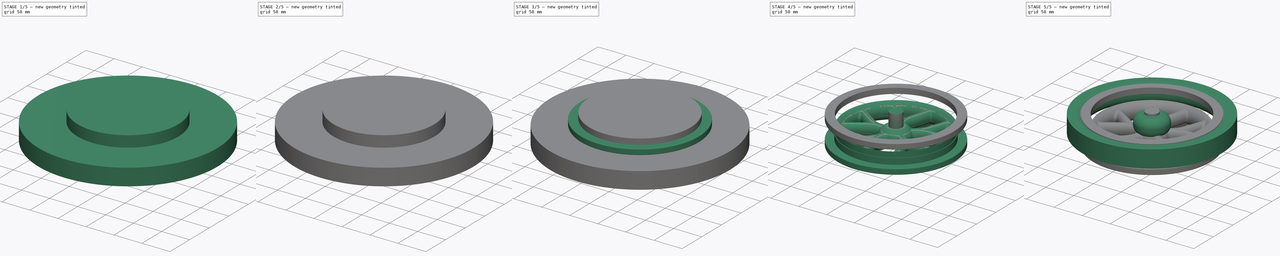
[diagram: build sequence overview — one tinted view per stage of 5, left to right]
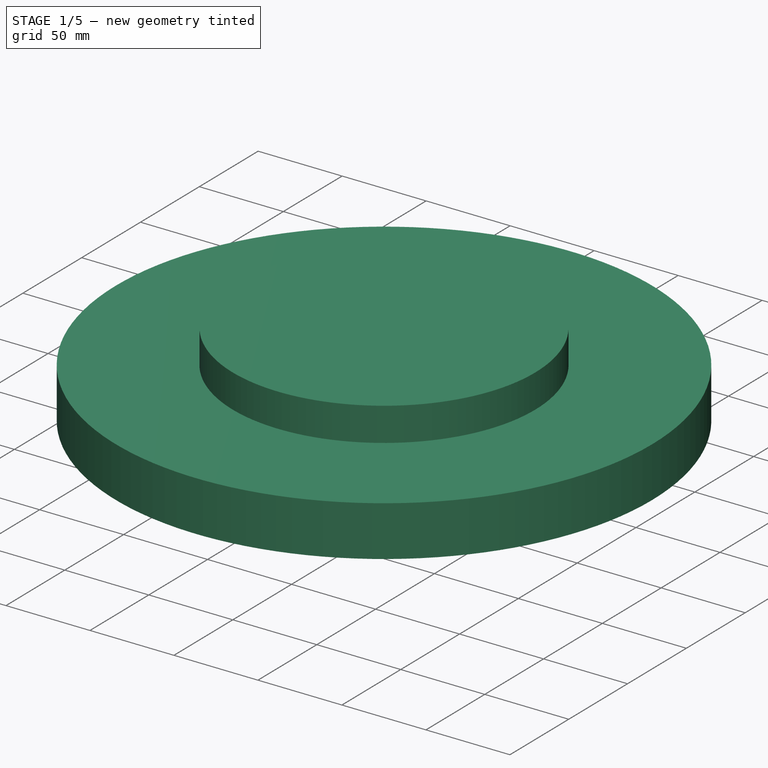
[diagram: stage 1 of 5 — iso view after this stage's code; geometry added in this stage tinted green]
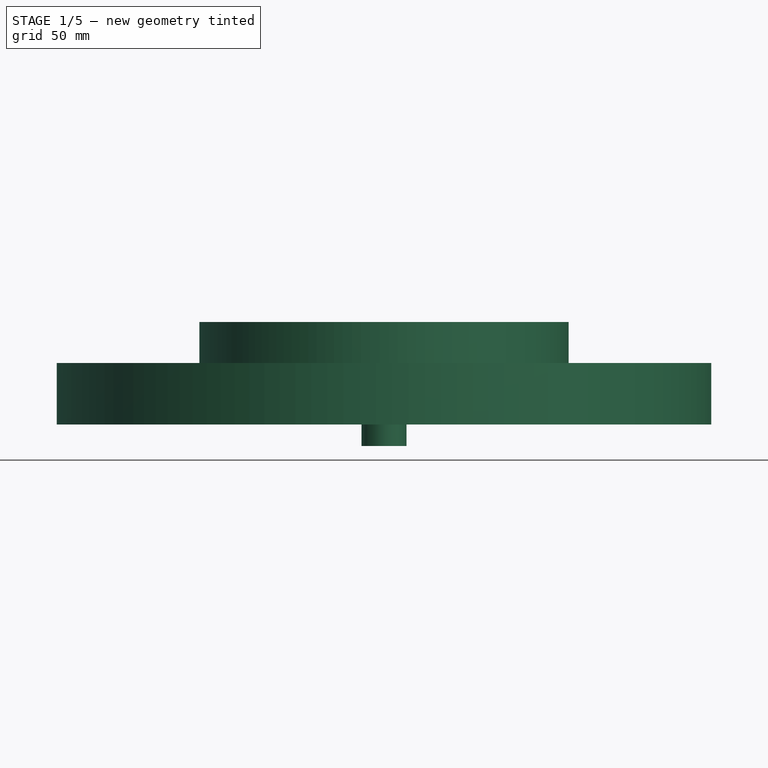
[diagram: stage 1 of 5 — front view after this stage's code; geometry added in this stage tinted green]
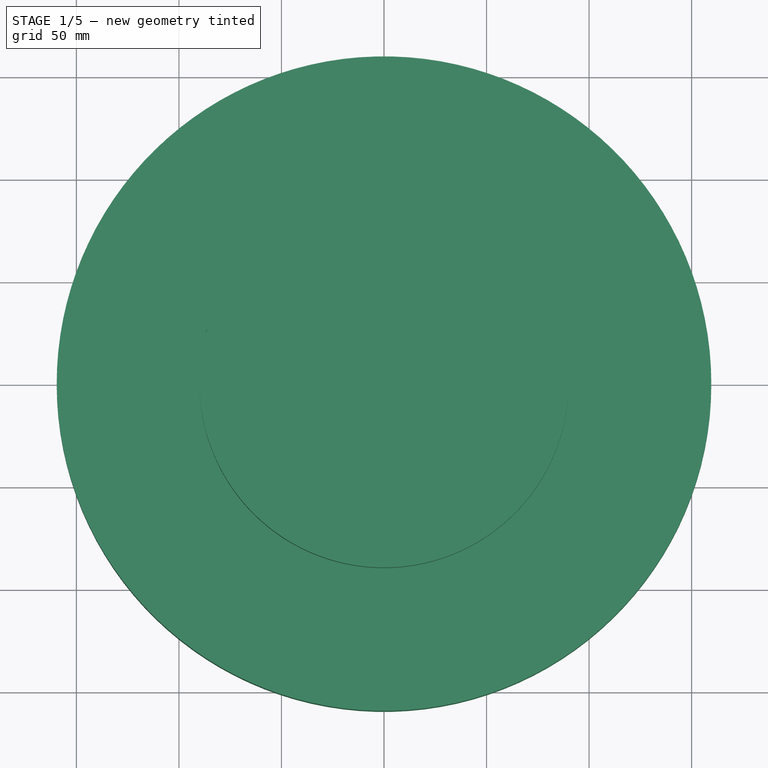
[diagram: stage 1 of 5 — top view after this stage's code; geometry added in this stage tinted green]
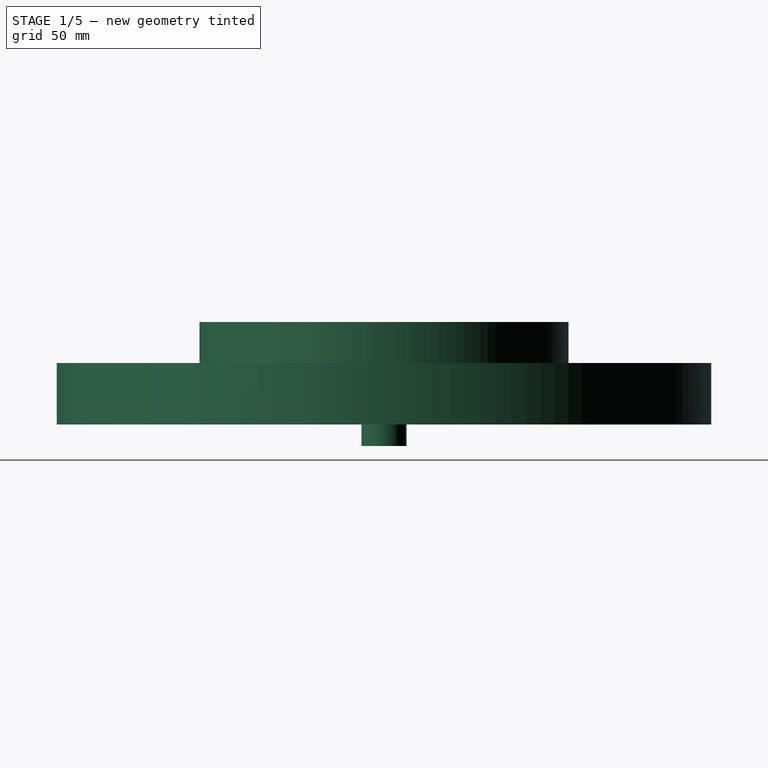
[diagram: stage 1 of 5 — right view after this stage's code; geometry added in this stage tinted green]
FCSTD DOCUMENT  (FreeCAD 0.21R30193 (Git))
Label: Vorderrad_Siggi
License: All rights reserved
LicenseURL: http://en.wikipedia.org/wiki/All_rights_reserved
objects: Sketcher::SketchObject×9, PartDesign::Body×6, Part::FeaturePython×4, Part::Fillet×3, PartDesign::Revolution×3, Part::Cylinder×2, PartDesign::AdditivePipe×2, PartDesign::PolarPattern×2, Part::MultiFuse×2, PartDesign::Pad×2, Part::Cut×1, App::DocumentObjectGroup×1
note: 43 computed .brp shape members not serialized (recipe doc carries the construction recipe); baked Part::Feature solids carry a one-line shape summary decoded from their .brp

FEATURE [PartDesign::Body] Body002  label="Felge16"
  Group = -> [Sketch002,Revolution]
  Origin = -> Origin002
  Placement = pos=(0,0,15.5) rot=(0,0,1;0rad)
  Tip = -> Revolution
FEATURE [Sketcher::SketchObject] Sketch004  label="leg-profile-copy"
  AttachmentOffset = pos=(0.5,0,-10.1) rot=(0,0,1;0rad)
  FullyConstrained = true
  MapMode = 5
  Placement = pos=(-10.1,0.5,-2.4e-15) rot=(0.57735,0.57735,0.57735;2.0944rad)
  Support = -> [YZ_Plane003]
  expr: Constraints[15] = Sketch.Constraints[15]
  expr: Constraints[17] = Sketch.Constraints[17]
  expr: Constraints[5] = Sketch.Constraints[5]
  expr: Constraints[7] = Sketch.Constraints[7]
  expr: Constraints[8] = Sketch.Constraints[8]
  sketch-geometry (8):
    g0: ArcOfEllipse CenterX=0 CenterY=15.5 CenterZ=0 NormalX=0 NormalY=0 NormalZ=1 MajorRadius=10.5 MinorRadius=7.5 AngleXU=1.5708 StartAngle=3.48143 EndAngle=9.08494
    g1: LineSegment StartX=0 StartY=26 StartZ=0 EndX=0 EndY=5 EndZ=0
    g2: LineSegment StartX=-7.5 StartY=15.5 StartZ=0 EndX=7.5 EndY=15.5 EndZ=0
    g3: GeomPoint X=0 Y=22.8485 Z=0
    g4: GeomPoint X=0 Y=8.15153 Z=0
    g5: LineSegment StartX=-2.5 StartY=5.60051 StartZ=0 EndX=-0.75 EndY=0 EndZ=0
    g6: LineSegment StartX=-0.75 StartY=0 StartZ=0 EndX=0.75 EndY=0 EndZ=0
    g7: LineSegment StartX=0.75 StartY=0 StartZ=0 EndX=2.5 EndY=5.60051 EndZ=0
  constraints (15):
    c: InternalAlignment(g1-g4 -> g0) x4
    c: PointOnObject(g0,g-2)
    c: DistanceY(g0) = 15.5
    c: PointOnObject(g1,g-2)
    c: DistanceY(g1,g1) = 21
    c: DistanceX(g2,g2) = 15
    c: PointOnObject(g5,g-1)
    c: Coincident(g5,g6)
    c: Coincident(g6,g7)
    c: Symmetric(g5,g7,g-2)
    c: Coincident(g0,g7)
    c: PointOnObject(g0,g5)
    c: DistanceX(g0,g0) = 5
    c: Symmetric(g5,g6,g-2)
    c: DistanceX(g5,g6) = 1.5
FEATURE [Sketcher::SketchObject] Sketch005  label="leg-path-right"
  FullyConstrained = true
  MapMode = 5
  Support = -> [XY_Plane003]
  expr: Constraints[10] = Sketch001.Constraints[13] + 0.1mm
  expr: Constraints[16] = Sketch001.Constraints[3]
  expr: Constraints[3] = Sketch001.Constraints[6]
  expr: Constraints[4] = Sketch001.Constraints[7]
  expr: Constraints[6] = Sketch001.Constraints[9]
  expr: Constraints[7] = -Sketch001.Constraints[10]
  expr: Constraints[8] = -Sketch001.Constraints[11]
  sketch-geometry (6):
    g0: LineSegment StartX=-48.8563 StartY=7.1797 StartZ=0 EndX=-83.6759 EndY=30.6658 EndZ=0
    g1: GeomPoint X=-40.2983 Y=1.40725 Z=0
    g2: LineSegment StartX=0 StartY=0 StartZ=0 EndX=-75.8622 EndY=25.3954 EndZ=0
    g3: LineSegment StartX=-9.09446 StartY=0.317585 StartZ=0 EndX=-29.9817 EndY=1.04698 EndZ=0
    g4: LineSegment StartX=0 StartY=0 StartZ=0 EndX=-75.8622 EndY=-25.3954 EndZ=0
    g5: ArcOfCircle CenterX=-28.7253 CenterY=37.0251 CenterZ=0 NormalX=0 NormalY=0 NormalZ=1 AngleXU=0 Radius=36 StartAngle=4.11898 EndAngle=4.67748
  constraints (17):
    c: PointOnObject(g1,g0)
    c: PointOnObject(g2,g0)
    c: Coincident(g2,g-1)
    c: Distance(g2) = 80
    c: Distance(g0) = 42
    c: PointOnObject(g1,g3)
    c: Distance(g2,g3) = 30
    c: Angle(g3) = 3.10669
    c: Angle(g0,g3) = -2.58309
    c: PointOnObject(g2,g3)
    c: Distance(g3,g2) = 9.1
    c: Coincident(g4,g2)
    c: Symmetric(g4,g2,g-1)
    c: Angle(g4,g2) = -0.646063
    c: Tangent(g5,g3) = 1.5708
    c: Tangent(g5,g0) = 1.5708
    c: Radius(g5) = 36
FEATURE [PartDesign::AdditivePipe] AdditivePipe001
  AuxilleryCurvelinear = true
  AuxillerySpineTangent = false
  Binormal = (0,0,0)
  Mode = 0
  Placement = pos=(0,0,0) rot=(0.57735,0.57735,0.57735;2.0944rad)
  Profile = -> Sketch004
  Spine = -> Sketch005
  SpineTangent = false
  Transformation = 0
  Transition = 0
FEATURE [Sketcher::SketchObject] Sketch006
  AttachmentOffset = pos=(0,0,21) rot=(0,0,1;0rad)
  FullyConstrained = false
  MapMode = 5
  Placement = pos=(0,0,21) rot=(0,0,1;0rad)
  Support = -> [XY_Plane004]
  sketch-geometry (1):
    g0: Circle CenterX=0 CenterY=0 CenterZ=0 NormalX=0 NormalY=0 NormalZ=1 AngleXU=0 Radius=159.603
  constraints (1):
    c: Coincident(g0,g-1)
FEATURE [PartDesign::Pad] Pad
  Direction = (0,0,1)
  Length = 30
  Length2 = 10
  Profile = -> Sketch006
  ReferenceAxis = -> Sketch006 [N_Axis]
  Reversed = true
  Type = 0
FEATURE [Sketcher::SketchObject] Sketch007
  FullyConstrained = true
  MapMode = 5
  Placement = pos=(0,0,21) rot=(0,0,1;0rad)
  Support = -> [Pad]
  sketch-geometry (1):
    g0: Circle CenterX=0 CenterY=0 CenterZ=0 NormalX=0 NormalY=0 NormalZ=1 AngleXU=0 Radius=90
  constraints (2):
    c: Coincident(g0,g-1)
    c: Diameter(g0) = 180
FEATURE [PartDesign::Pad] Pad001
  BaseFeature = -> Pad
  Direction = (0,0,1)
  Length = 20
  Length2 = 10
  Profile = -> Sketch007
  ReferenceAxis = -> Sketch007 [N_Axis]
  Type = 0
FEATURE [PartDesign::Body] Body004  label="splitter"
  Group = -> [Sketch006,Pad,Sketch007,Pad001]
  Origin = -> Origin004
  Tip = -> Pad001
FEATURE [Sketcher::SketchObject] Sketch008
  FullyConstrained = true
  MapMode = 5
  Placement = pos=(0,0,0) rot=(1,0,0;1.5708rad)
  Support = -> [XZ_Plane007]
  sketch-geometry (12):
    g0: LineSegment StartX=0 StartY=19.5 StartZ=0 EndX=11 EndY=19.5 EndZ=0
    g1: LineSegment StartX=11 StartY=19.5 StartZ=0 EndX=11 EndY=8.5 EndZ=0
    g2: LineSegment StartX=11 StartY=8.5 StartZ=0 EndX=9.5 EndY=8.5 EndZ=0
    g3: LineSegment StartX=9.5 StartY=8.5 StartZ=0 EndX=9.5 EndY=5 EndZ=0
    g4: LineSegment StartX=9.5 StartY=5 StartZ=0 EndX=13 EndY=2.06315 EndZ=0
    g5: LineSegment StartX=13 StartY=2.06315 StartZ=0 EndX=13 EndY=-2.06315 EndZ=0
    g6: LineSegment StartX=13 StartY=-2.06315 StartZ=0 EndX=9.5 EndY=-5 EndZ=0
    g7: LineSegment StartX=9.5 StartY=-5 StartZ=0 EndX=9.5 EndY=-8.5 EndZ=0
    g8: LineSegment StartX=9.5 StartY=-8.5 StartZ=0 EndX=11 EndY=-8.5 EndZ=0
    g9: LineSegment StartX=11 StartY=-8.5 StartZ=0 EndX=11 EndY=-19.5 EndZ=0
    g10: LineSegment StartX=11 StartY=-19.5 StartZ=0 EndX=0 EndY=-19.5 EndZ=0
    g11: LineSegment StartX=0 StartY=-19.5 StartZ=0 EndX=0 EndY=19.5 EndZ=0
  constraints (34):
    c: PointOnObject(g0,g-2)
    c: Horizontal(g0)
    c: Coincident(g0,g1)
    c: Vertical(g1)
    c: Coincident(g1,g2)
    c: Horizontal(g2)
    c: Coincident(g2,g3)
    c: Vertical(g3)
    c: Coincident(g3,g4)
    c: Coincident(g4,g5)
    c: Coincident(g5,g6)
    c: Coincident(g6,g7)
    c: Coincident(g7,g8)
    c: Coincident(g8,g9)
    c: Vertical(g9)
    c: Coincident(g9,g10)
    c: PointOnObject(g10,g-2)
    c: Horizontal(g10)
    c: Coincident(g10,g11)
    c: Coincident(g11,g0)
    c: Symmetric(g1,g8,g-1)
    c: Equal(g9,g1)
    c: Symmetric(g3,g6,g-1)
    c: Vertical(g5)
    c: Equal(g6,g4)
    c: Angle(g-1,g6) = 0.698132
    c: Vertical(g7)
    c: Horizontal(g8)
    c: DistanceX(g2,g2) = 1.5
    c: DistanceY(g3,g3) = 3.5
    c: DistanceX(g0,g0) = 11
    c: DistanceY(g8,g1) = 17
    c: Equal(g0,g1)
    c: DistanceX(g5) = 13
FEATURE [PartDesign::Revolution] Revolution002
  Angle = 360
  Axis = (0,-2e-16,1)
  Base = (0,0,0)
  Placement = pos=(0,0,0) rot=(1,0,0;1.5708rad)
  Profile = -> Sketch008
  ReferenceAxis = -> Sketch008 [V_Axis]
  Reversed = true
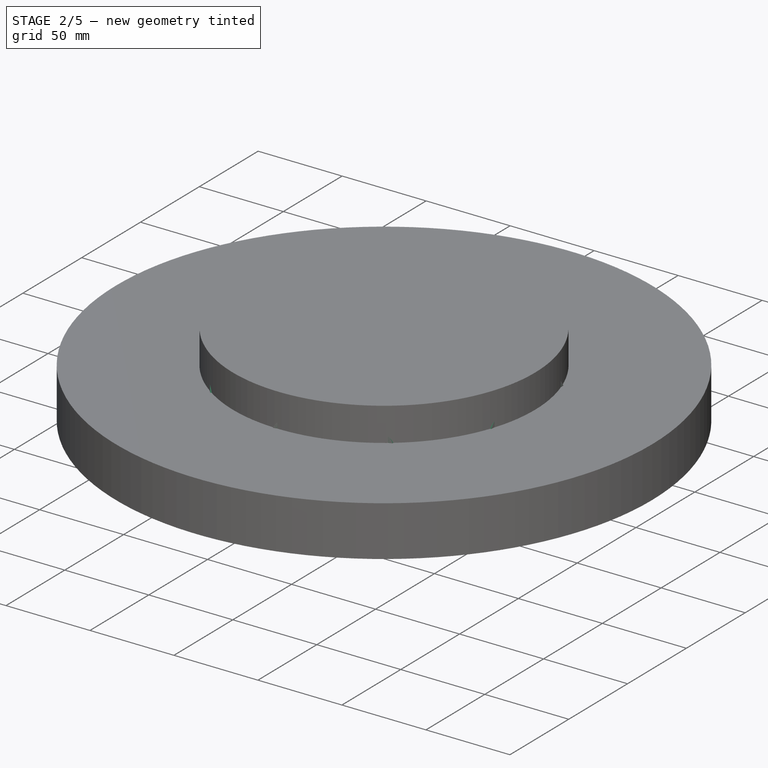
[diagram: stage 2 of 5 — iso view after this stage's code; geometry added in this stage tinted green]
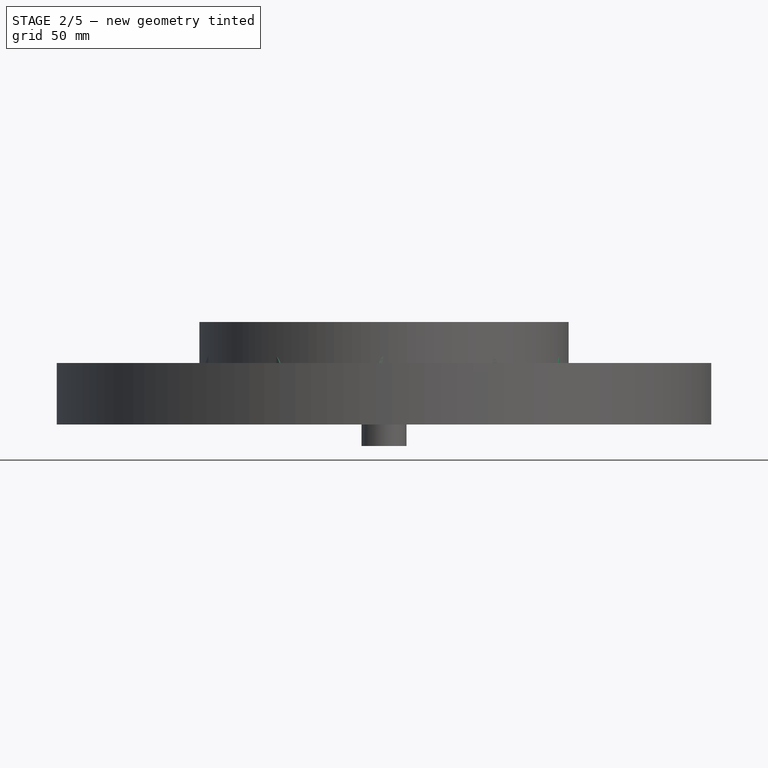
[diagram: stage 2 of 5 — front view after this stage's code; geometry added in this stage tinted green]
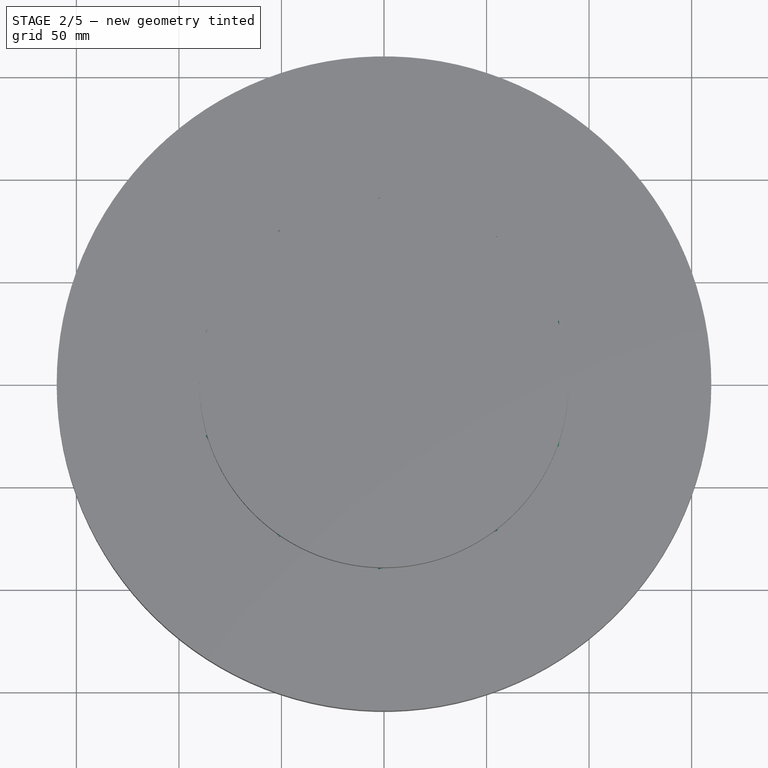
[diagram: stage 2 of 5 — top view after this stage's code; geometry added in this stage tinted green]
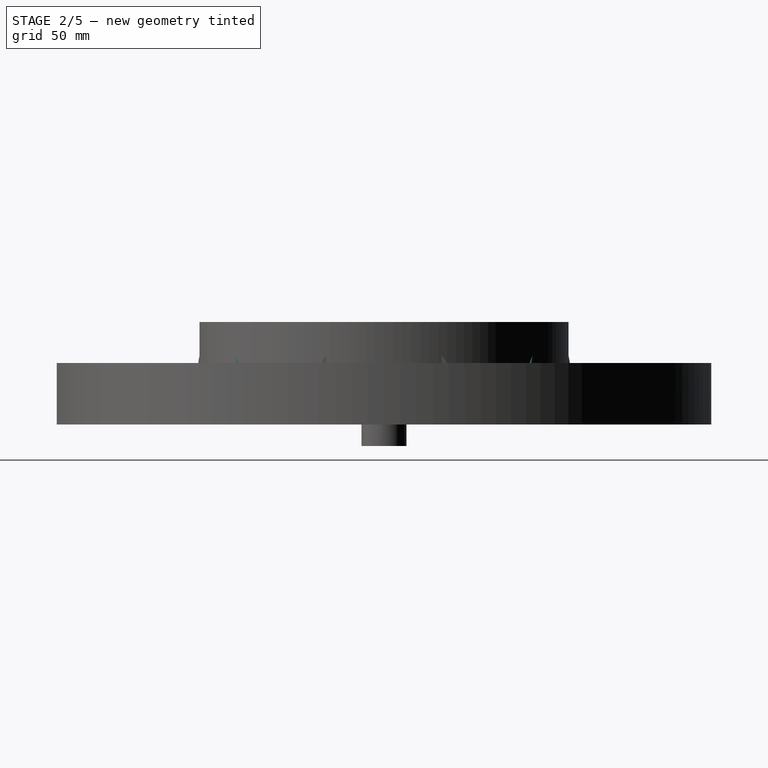
[diagram: stage 2 of 5 — right view after this stage's code; geometry added in this stage tinted green]
FEATURE [Sketcher::SketchObject] Sketch  label="leg-profile"
  AttachmentOffset = pos=(-0.5,0,-10) rot=(0,0,1;0rad)
  FullyConstrained = true
  MapMode = 5
  Placement = pos=(-10,-0.5,-2.1e-15) rot=(0.57735,0.57735,0.57735;2.0944rad)
  Support = -> [YZ_Plane]
  sketch-geometry (8):
    g0: ArcOfEllipse CenterX=0 CenterY=15.5 CenterZ=0 NormalX=0 NormalY=0 NormalZ=1 MajorRadius=10.5 MinorRadius=7.5 AngleXU=1.5708 StartAngle=3.48143 EndAngle=9.08494
    g1: LineSegment StartX=0 StartY=26 StartZ=0 EndX=0 EndY=5 EndZ=0
    g2: LineSegment StartX=-7.5 StartY=15.5 StartZ=0 EndX=7.5 EndY=15.5 EndZ=0
    g3: GeomPoint X=0 Y=22.8485 Z=0
    g4: GeomPoint X=0 Y=8.15153 Z=0
    g5: LineSegment StartX=-2.5 StartY=5.60051 StartZ=0 EndX=-0.75 EndY=0 EndZ=0
    g6: LineSegment StartX=-0.75 StartY=0 StartZ=0 EndX=0.75 EndY=0 EndZ=0
    g7: LineSegment StartX=0.75 StartY=0 StartZ=0 EndX=2.5 EndY=5.60051 EndZ=0
  constraints (15):
    c: InternalAlignment(g1-g4 -> g0) x4
    c: PointOnObject(g0,g-2)
    c: DistanceY(g0) = 15.5
    c: PointOnObject(g1,g-2)
    c: DistanceY(g1,g1) = 21
    c: DistanceX(g2,g2) = 15
    c: PointOnObject(g5,g-1)
    c: Coincident(g5,g6)
    c: Coincident(g6,g7)
    c: Symmetric(g5,g7,g-2)
    c: Coincident(g0,g7)
    c: PointOnObject(g0,g5)
    c: DistanceX(g0,g0) = 5
    c: Symmetric(g5,g6,g-2)
    c: DistanceX(g5,g6) = 1.5
FEATURE [Sketcher::SketchObject] Sketch001  label="leg-path-left"
  FullyConstrained = true
  MapMode = 5
  Support = -> [XY_Plane]
  sketch-geometry (6):
    g0: LineSegment StartX=-48.8563 StartY=-7.1797 StartZ=0 EndX=-83.6759 EndY=-30.6658 EndZ=0
    g1: ArcOfCircle CenterX=-28.7253 CenterY=-37.0251 CenterZ=0 NormalX=0 NormalY=0 NormalZ=1 AngleXU=0 Radius=36 StartAngle=1.6057 EndAngle=2.16421
    g2: GeomPoint X=-40.2983 Y=-1.40725 Z=0
    g3: LineSegment StartX=0 StartY=0 StartZ=0 EndX=-75.8622 EndY=-25.3954 EndZ=0
    g4: LineSegment StartX=-8.99452 StartY=-0.314095 StartZ=0 EndX=-29.9817 EndY=-1.04698 EndZ=0
    g5: LineSegment StartX=0 StartY=0 StartZ=0 EndX=-75.8622 EndY=25.3954 EndZ=0
  constraints (17):
    c: PointOnObject(g2,g0)
    c: Tangent(g4,g1) = -1.5708
    c: Tangent(g0,g1) = -1.5708
    c: Radius(g1) = 36
    c: PointOnObject(g3,g0)
    c: Coincident(g3,g-1)
    c: Distance(g3) = 80
    c: Distance(g0) = 42
    c: PointOnObject(g2,g4)
    c: Distance(g3,g4) = 30
    c: Angle(g4) = -3.10669
    c: Angle(g0,g4) = 2.58309
    c: PointOnObject(g3,g4)
    c: Distance(g4,g3) = 9
    c: Coincident(g5,g3)
    c: Symmetric(g5,g3,g-1)
    c: Angle(g5,g3) = 0.646063
FEATURE [PartDesign::AdditivePipe] AdditivePipe
  AuxilleryCurvelinear = true
  AuxillerySpineTangent = false
  Binormal = (0,0,0)
  Mode = 0
  Placement = pos=(0,0,0) rot=(0.57735,0.57735,0.57735;2.0944rad)
  Profile = -> Sketch
  Spine = -> Sketch001
  SpineTangent = false
  Transformation = 0
  Transition = 1
FEATURE [PartDesign::PolarPattern] PolarPattern
  Angle = 360
  Axis = -> Z_Axis
  BaseFeature = -> AdditivePipe
  Occurrences = 5
  Originals = -> [AdditivePipe]
  Placement = pos=(0,0,0) rot=(0.57735,0.57735,0.57735;2.0944rad)
  Refine = true
  Reversed = true
FEATURE [PartDesign::PolarPattern] PolarPattern001
  Angle = 360
  Axis = -> Z_Axis003
  BaseFeature = -> AdditivePipe001
  Occurrences = 5
  Originals = -> [AdditivePipe001]
  Placement = pos=(0,0,0) rot=(0.57735,0.57735,0.57735;2.0944rad)
  Refine = true
FEATURE [PartDesign::Body] Body003  label="spokes-right"
  Group = -> [Sketch004,Sketch005,AdditivePipe001,PolarPattern001]
  Origin = -> Origin003
  Tip = -> PolarPattern001
FEATURE [Part::MultiFuse] Fusion  label="Speichen"
  Shapes = -> [Body003,Body]
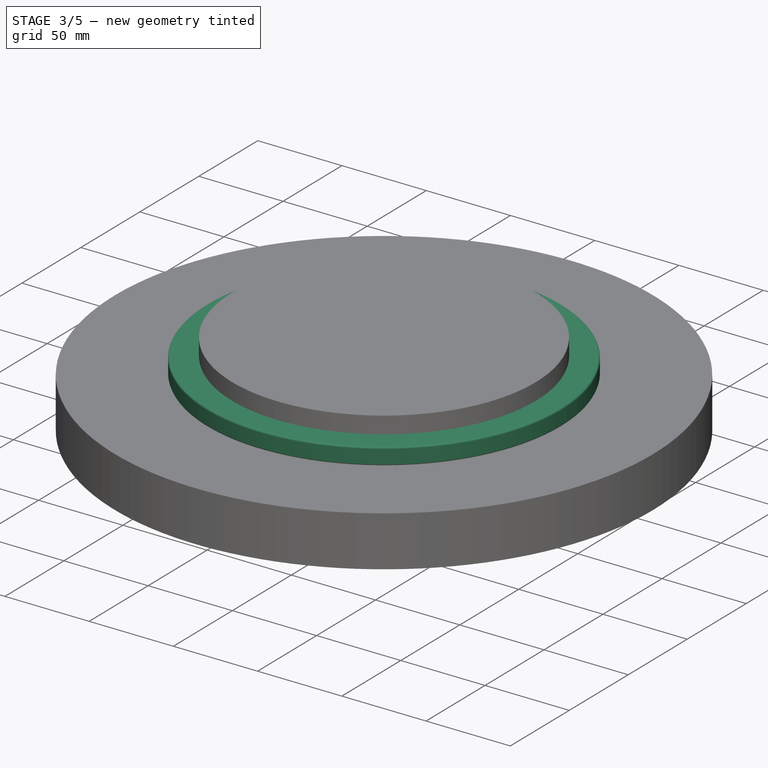
[diagram: stage 3 of 5 — iso view after this stage's code; geometry added in this stage tinted green]
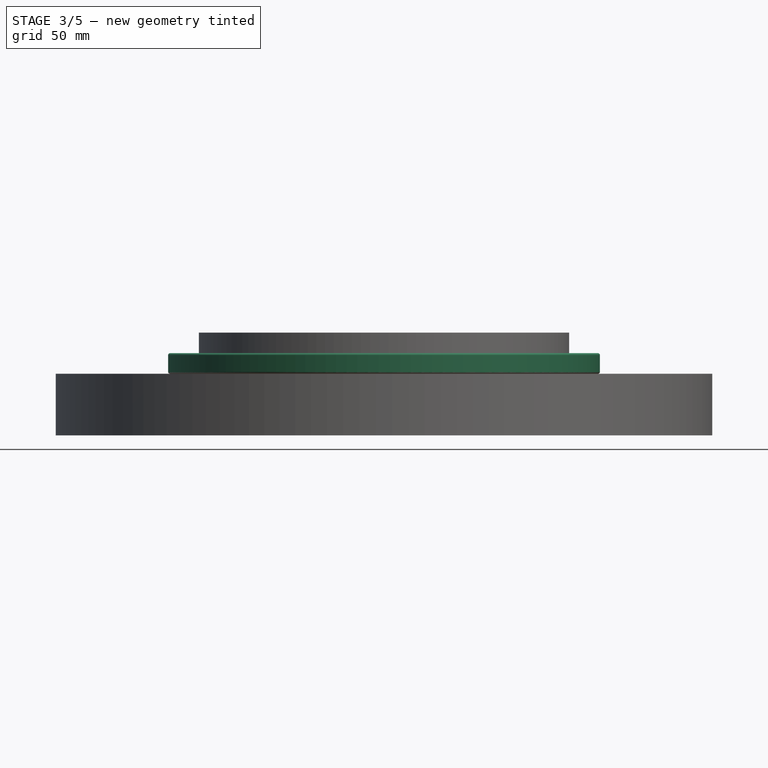
[diagram: stage 3 of 5 — front view after this stage's code; geometry added in this stage tinted green]
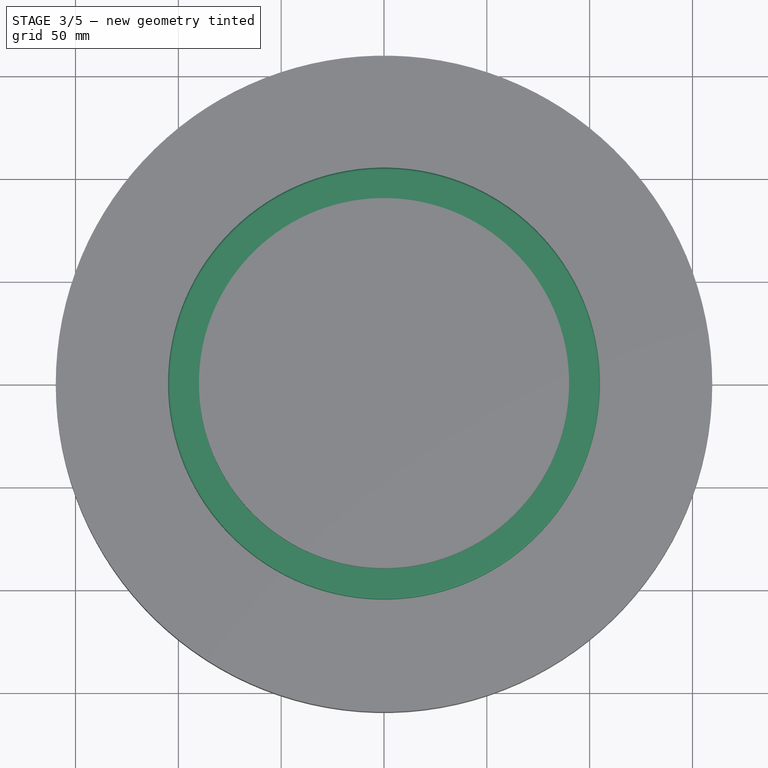
[diagram: stage 3 of 5 — top view after this stage's code; geometry added in this stage tinted green]
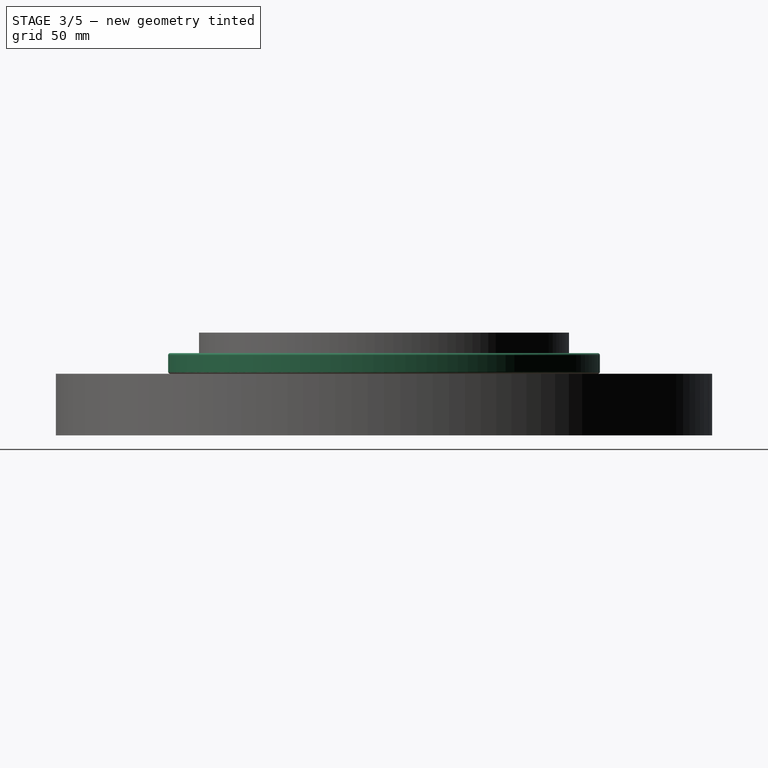
[diagram: stage 3 of 5 — right view after this stage's code; geometry added in this stage tinted green]
FEATURE [Sketcher::SketchObject] Sketch002  label="rim-profile"
  FullyConstrained = true
  MapMode = 5
  Placement = pos=(0,0,0) rot=(1,0,0;1.5708rad)
  Support = -> [XZ_Plane004]
  sketch-geometry (9):
    g0: LineSegment StartX=-91 StartY=5.5 StartZ=0 EndX=-105 EndY=5.5 EndZ=0
    g1: LineSegment StartX=-105 StartY=5.5 StartZ=0 EndX=-105 EndY=15.5 EndZ=0
    g2: LineSegment StartX=-105 StartY=15.5 StartZ=0 EndX=-90 EndY=15.5 EndZ=0
    g3: LineSegment StartX=-90 StartY=-15.5 StartZ=0 EndX=-105 EndY=-15.5 EndZ=0
    g4: LineSegment StartX=-105 StartY=-15.5 StartZ=0 EndX=-105 EndY=-5.5 EndZ=0
    g5: LineSegment StartX=-105 StartY=-5.5 StartZ=0 EndX=-91 EndY=-5.5 EndZ=0
    g6: LineSegment StartX=-91 StartY=-5.5 StartZ=0 EndX=-91 EndY=5.5 EndZ=0
    g7: ArcOfCircle CenterX=-95 CenterY=-2e-16 CenterZ=0 NormalX=0 NormalY=0 NormalZ=1 AngleXU=0 Radius=16.2865 StartAngle=5.02443 EndAngle=7.54194
    g8: GeomPoint X=105 Y=15.5 Z=0
  constraints (24):
    c: Horizontal(g0)
    c: Coincident(g0,g1)
    c: Vertical(g1)
    c: Coincident(g1,g2)
    c: Horizontal(g2)
    c: Horizontal(g3)
    c: Coincident(g3,g4)
    c: Vertical(g4)
    c: Coincident(g4,g5)
    c: Horizontal(g5)
    c: Coincident(g5,g6)
    c: Coincident(g6,g0)
    c: Symmetric(g2,g3,g-1)
    c: Symmetric(g0,g5,g-1)
    c: PointOnObject(g4,g1)
    c: Coincident(g7,g2)
    c: Coincident(g7,g3)
    c: DistanceX(g7,g3) = 5
    c: DistanceY(g3,g1) = 31
    c: DistanceY(g4,g0) = 11
    c: DistanceX(g4,g5) = 14
    c: DistanceX(g2,g2) = 15
    c: Symmetric(g8,g1,g-2)
    c: DistanceX(g1,g8) = 210
FEATURE [Sketcher::SketchObject] Sketch003  label="hub-profile"
  ExternalGeometry = -> [Sketch002]
  FullyConstrained = false
  MapMode = 5
  Placement = pos=(0,0,0) rot=(1,0,0;1.5708rad)
  Support = -> [XZ_Plane003]
  sketch-geometry (6):
    g0: LineSegment StartX=0 StartY=-15.5 StartZ=0 EndX=-16 EndY=-15.5 EndZ=0
    g1: LineSegment StartX=-16 StartY=15.5 StartZ=0 EndX=0 EndY=15.5 EndZ=0
    g2: ArcOfCircle CenterX=-9 CenterY=5e-16 CenterZ=0 NormalX=0 NormalY=0 NormalZ=1 AngleXU=0 Radius=17.0074 StartAngle=1.99499 EndAngle=4.28819
    g3: GeomPoint X=9.9 Y=-8.5 Z=0
    g4: LineSegment StartX=0 StartY=-15.5 StartZ=0 EndX=0 EndY=15.5 EndZ=0
    g5: GeomPoint X=-26.0074 Y=0 Z=0
  constraints (16):
    c: Horizontal(g0)
    c: Horizontal(g1)
    c: Coincident(g2,g1)
    c: Coincident(g2,g0)
    c: Symmetric(g0,g1,g-1)
    c: PointOnObject(g-3,g0)
    c: DistanceX(g2) = -9
    c: PointOnObject(g4,g-2)
    c: PointOnObject(g4,g-2)
    c: PointOnObject(g5,g2)
    c: PointOnObject(g5,g-1)
    c: DistanceX(g5) = -26.0074
    c: DistanceY(g4,g4) = 31
    c: DistanceX(g1) = -16
    c: Coincident(g1,g4)
    c: Coincident(g0,g4)
FEATURE [PartDesign::Revolution] Revolution001
  Angle = 360
  Axis = (0,-2e-16,1)
  Base = (0,0,0)
  Placement = pos=(0,0,0) rot=(1,0,0;1.5708rad)
  Profile = -> Sketch003
  ReferenceAxis = -> Sketch003 [V_Axis]
FEATURE [PartDesign::Body] Body001  label="Nabe"
  Group = -> [Revolution001]
  Origin = -> Origin001
  Placement = pos=(0,0,15.5) rot=(0,0,1;0rad)
  Tip = -> Revolution001
FEATURE [PartDesign::Revolution] Revolution
  Angle = 360
  Axis = (0,-2e-16,1)
  Base = (0,0,0)
  Placement = pos=(0,0,0) rot=(1,0,0;1.5708rad)
  Profile = -> Sketch002
  ReferenceAxis = -> Sketch002 [V_Axis]
FEATURE [Part::MultiFuse] Fusion001
  Shapes = -> [Fusion,Body002,Body001]
FEATURE [PartDesign::Body] Body005  label="center-bore"
  Group = -> [Sketch008,Revolution002]
  Origin = -> Origin005
  Placement = pos=(0,0,13.5) rot=(0,0,1;0rad)
  Tip = -> Revolution002
FEATURE [Part::Cut] Cut
  Base = -> Fusion001
  Tool = -> Body005
FEATURE [Part::Fillet] Fillet002
  Base = -> Cut
  Edges = 24 edges: [Edge2 r=1,Edge7 r=4,Edge12 r=4,Edge15 r=4,Edge19 r=4,Edge23 r=4,Edge27 r=4,Edge31 r=4,Edge35 r=4,Edge39 r=4,Edge43 r=4,Edge45 r=1,Edge47 r=1,Edge149 r=1,Edge281 r=4,Edge290 r=4,Edge301 r=4,Edge307 r=4,Edge313 r=4,Edge322 r=4,Edge328 r=4,Edge337 r=4,Edge343 r=4,Edge349 r=4]
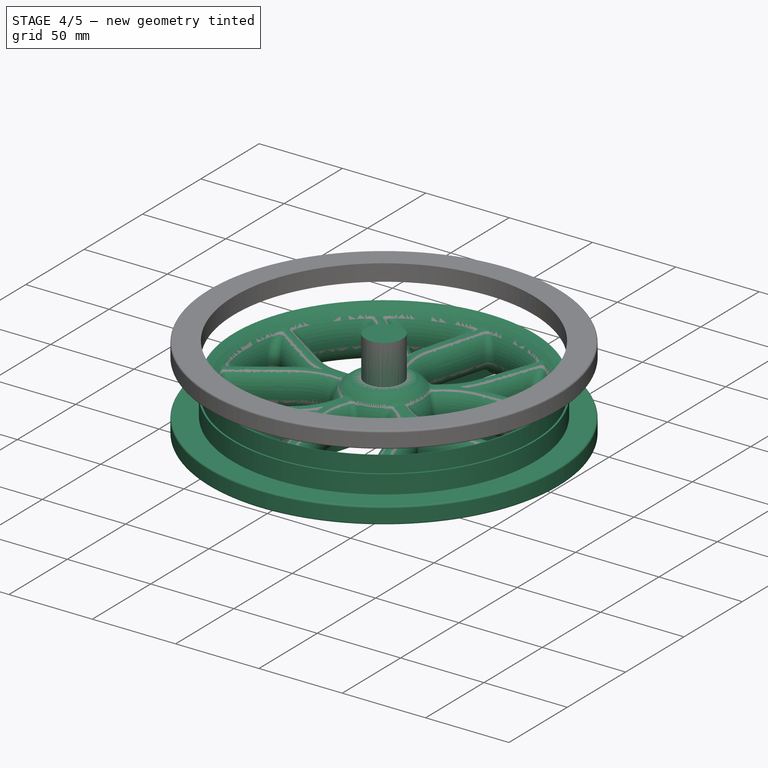
[diagram: stage 4 of 5 — iso view after this stage's code; geometry added in this stage tinted green]
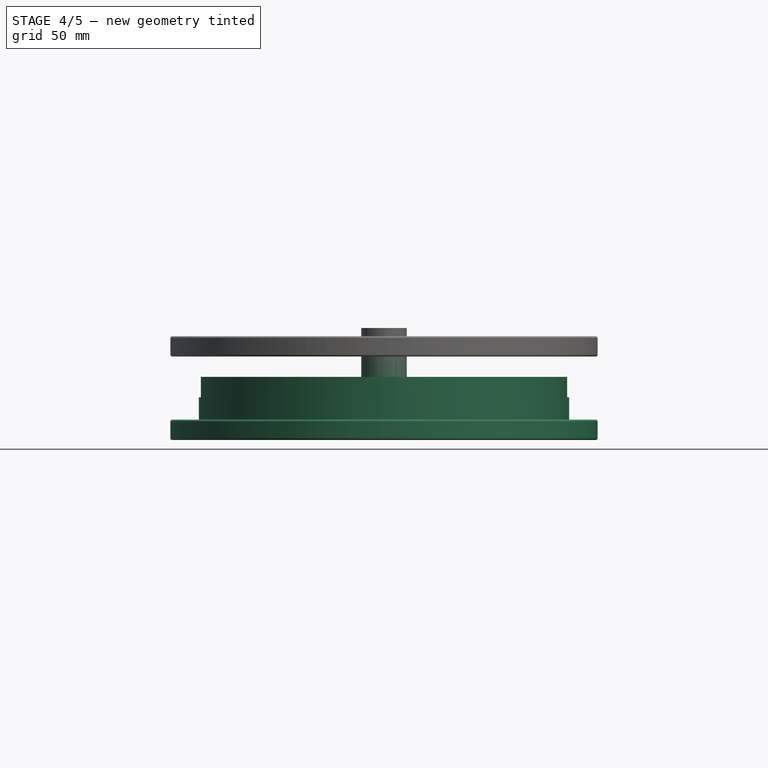
[diagram: stage 4 of 5 — front view after this stage's code; geometry added in this stage tinted green]
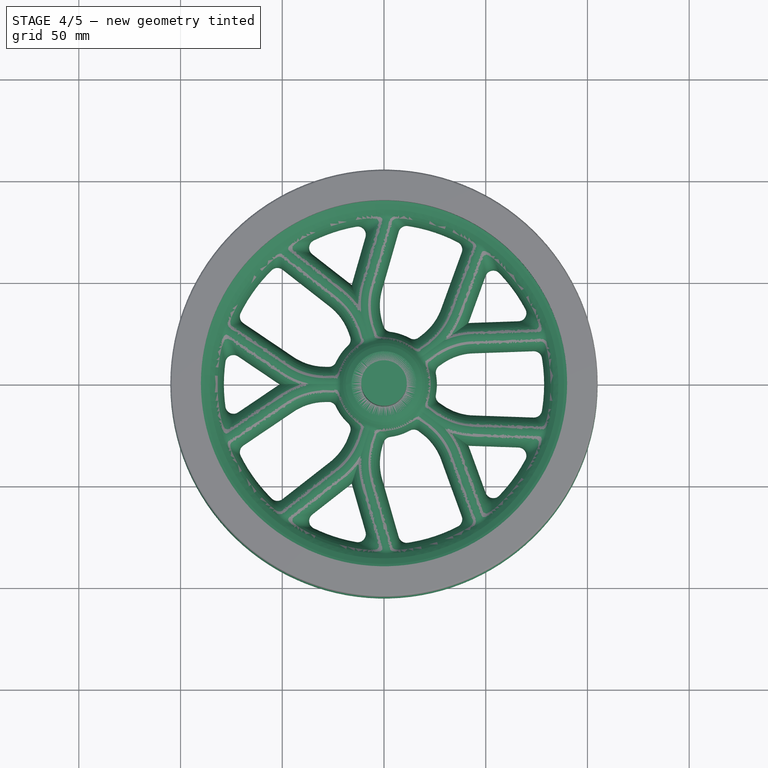
[diagram: stage 4 of 5 — top view after this stage's code; geometry added in this stage tinted green]
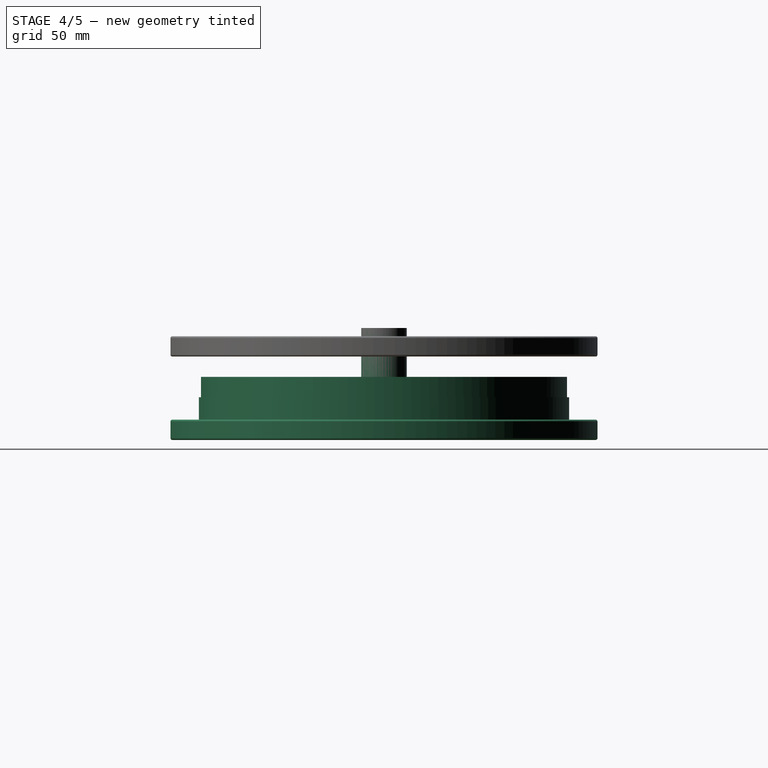
[diagram: stage 4 of 5 — right view after this stage's code; geometry added in this stage tinted green]
FEATURE [Part::Cylinder] Cylinder001
  Angle = 360
  AttacherType = Attacher::AttachEngine3D
  FirstAngle = 0
  Height = 40
  Placement = pos=(0,0,-5) rot=(0,0,1;0rad)
  Radius = 11.2
  SecondAngle = 0
FEATURE [Part::FeaturePython] Slice  # WARN: FeaturePython — macro-defined, semantics opaque (R4)
  Base = -> Fillet002
  Mode = 1
  Tolerance = 0
  Tools = -> [Body004]
FEATURE [Part::FeaturePython] Slice_child0  label="210mm-wheel-one-rim"  # WARN: FeaturePython — macro-defined, semantics opaque (R4)
  Base = -> Slice
  FilterType = 1
  Invert = false
  OverrideMaxVal = 0
  Placement = pos=(0,0,-20) rot=(0,0,1;0rad)
  WindowFrom = 80
  WindowTo = 100
  items = 0
FEATURE [Part::FeaturePython] Slice_child1  label="210mm-second-rim"  # WARN: FeaturePython — macro-defined, semantics opaque (R4)
  Base = -> Slice
  FilterType = 1
  Invert = false
  OverrideMaxVal = 0
  WindowFrom = 80
  WindowTo = 100
  items = 1
FEATURE [App::DocumentObjectGroup] GrExplode_Slice  label="Exploded Slice"
  Group = -> [Slice_child0,Slice_child1]
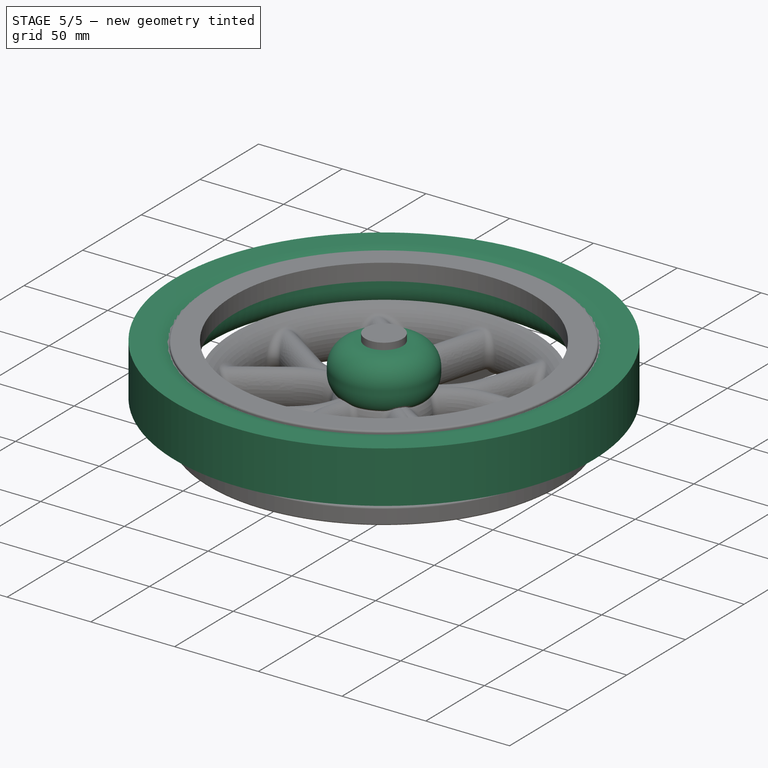
[diagram: stage 5 of 5 — iso view after this stage's code; geometry added in this stage tinted green]
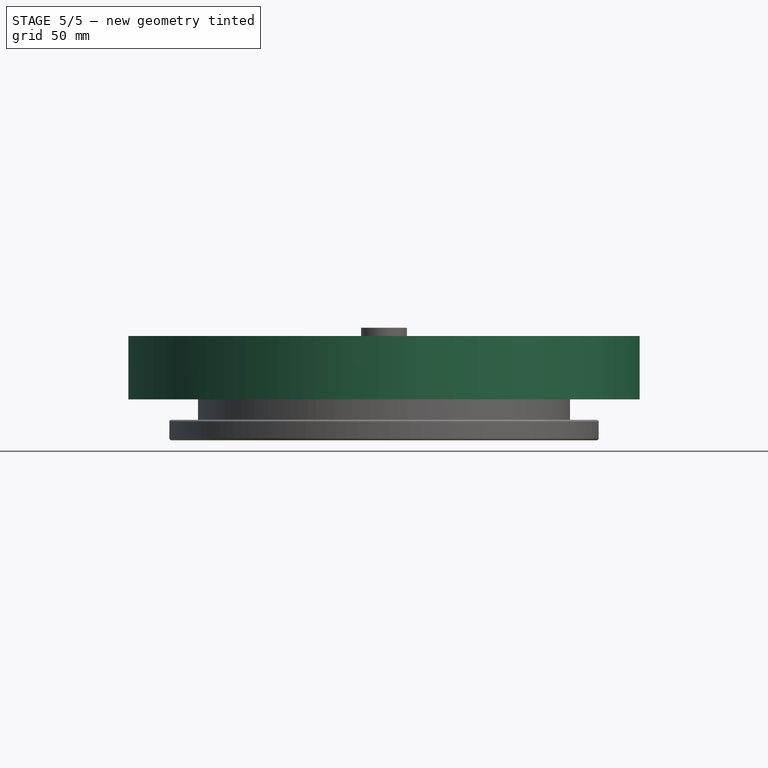
[diagram: stage 5 of 5 — front view after this stage's code; geometry added in this stage tinted green]
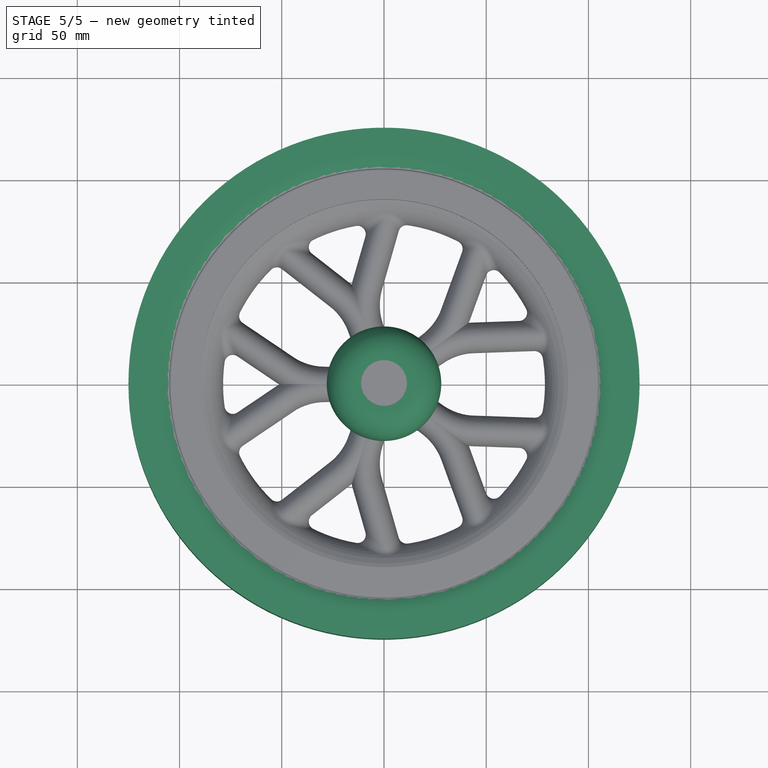
[diagram: stage 5 of 5 — top view after this stage's code; geometry added in this stage tinted green]
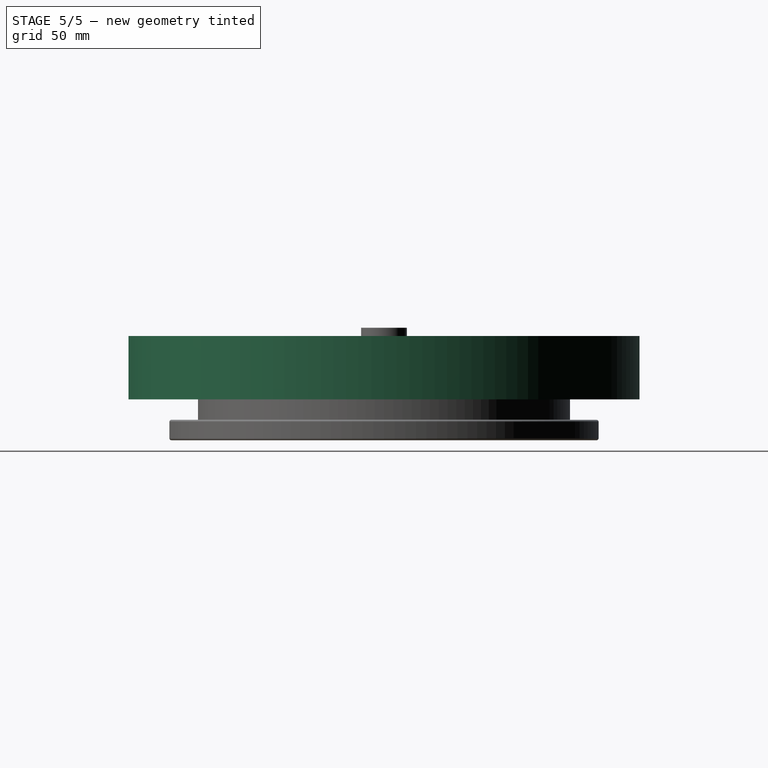
[diagram: stage 5 of 5 — right view after this stage's code; geometry added in this stage tinted green]
FEATURE [Part::Cylinder] Cylinder
  Angle = 360
  AttacherType = Attacher::AttachEngine3D
  FirstAngle = 0
  Height = 31
  Radius = 28
  SecondAngle = 0
FEATURE [Part::Fillet] Fillet  label="dummy_Hub"
  Base = -> Cylinder
  Edges = 2 edges r=14: [Edge2,Edge3]
FEATURE [PartDesign::Body] Body  label="spokes-left"
  Group = -> [Sketch,Sketch001,AdditivePipe,PolarPattern]
  Origin = -> Origin
  Tip = -> PolarPattern
FEATURE [Part::FeaturePython] Tube  # WARN: FeaturePython — macro-defined, semantics opaque (R4)
  AttacherType = Attacher::AttachEngine3D
  Height = 31
  InnerRadius = 98
  OuterRadius = 125
FEATURE [Part::Fillet] Fillet001  label="dummy_rim"
  Base = -> Tube
  Edges = 2 edges r=14: [Edge4,Edge5]
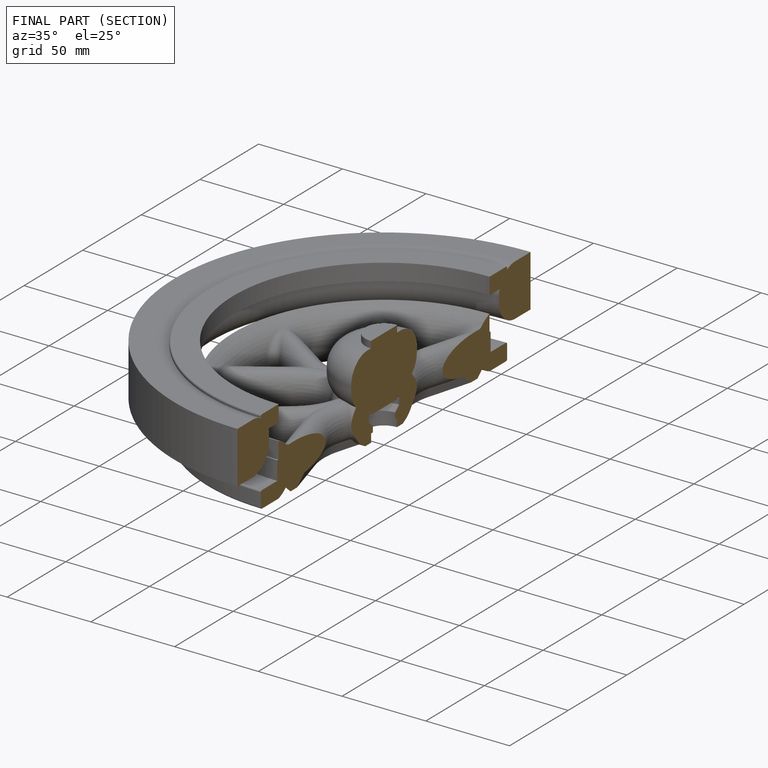
[diagram: finished part — half-section view (interior)]
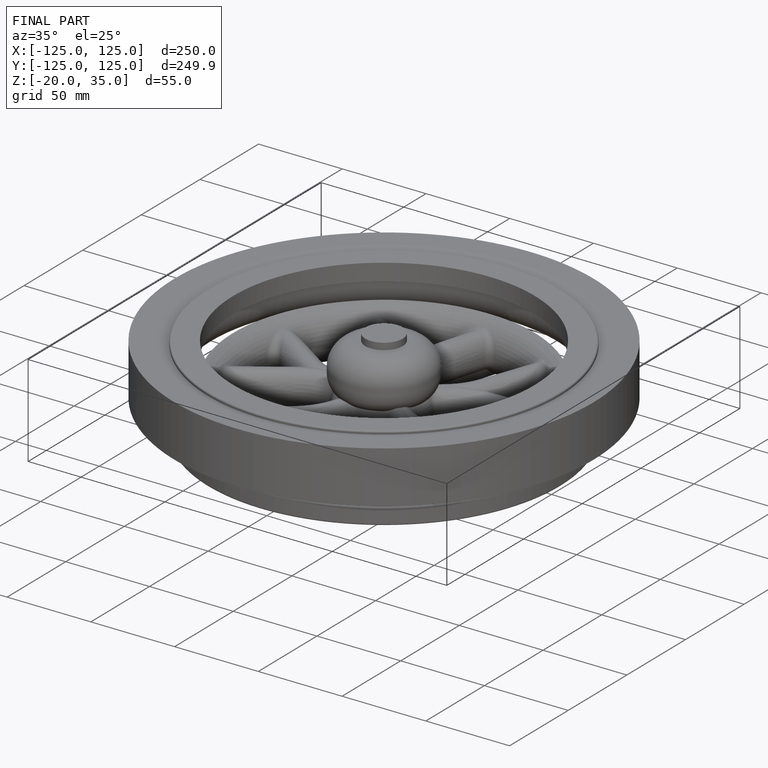
[diagram: finished part — iso view with bounding-box wireframe]
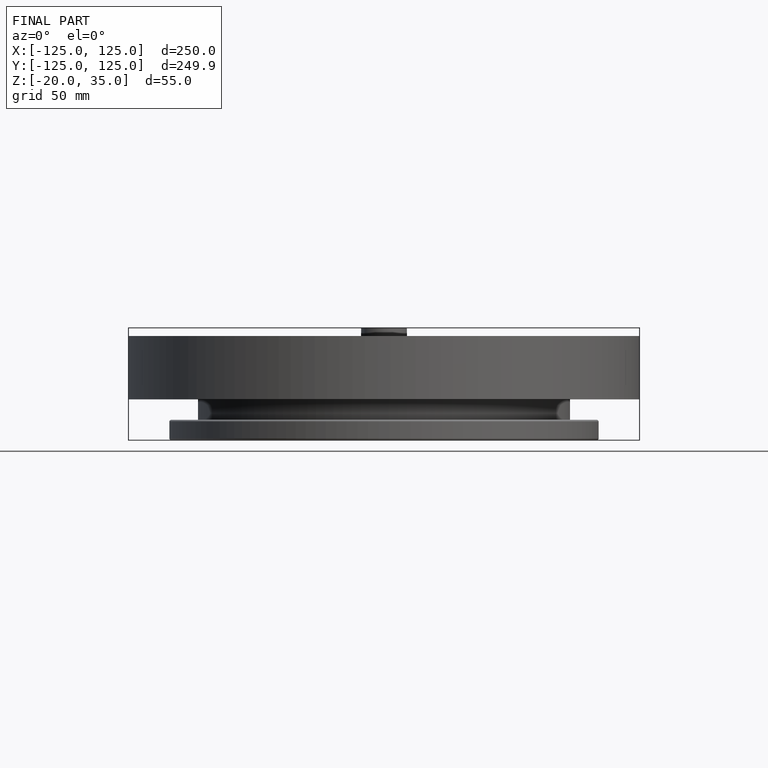
[diagram: finished part — front view with bounding-box wireframe]
